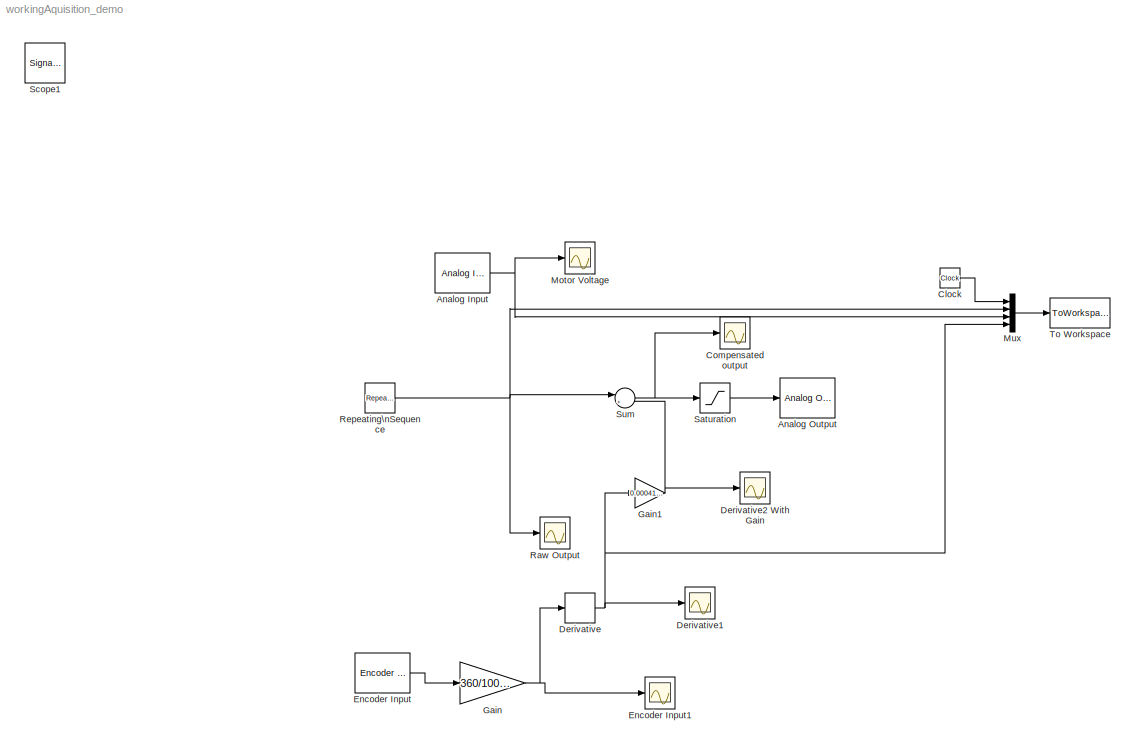
MODEL workingAquisition_demo
KIND model
BLOCK [Reference] Analog Input  REF=rtwinlib/Analog Input
  AttributesFormatString = Sensoray\\nModel 626 [auto]
  Channels = 1
  DataType = 1
  DrvAddress = 4294967295
  DrvName = Sensoray/Model_626
  DrvOptions = zeros(1,0)
  Ports = [0, 1]
  RangeMode = 1
  SampleTime = 0.01
  SourceBlock = rtwinlib/Analog Input
  SourceType = RTWin Analog Input
  VoltRange = 1
BLOCK [Reference] Analog Output  REF=rtwinlib/Analog Output
  AttributesFormatString = Sensoray\\nModel 626 [auto]
  Channels = 1
  DrvAddress = 4294967295
  DrvName = Sensoray/Model_626
  DrvOptions = zeros(1,0)
  FinalValue = 0
  InitialValue = 0
  Ports = [1]
  RangeMode = 1
  SampleTime = 0.01
  SourceBlock = rtwinlib/Analog Output
  SourceType = RTWin Analog Output
  VoltRange = 1
BLOCK [Clock] Clock
  Decimation = 10
BLOCK [Scope] Compensated output
  DataFormat = Array
  Floating = off
  NumInputPorts = 1
  Ports = [1]
  SampleTime = 0
  SaveName = position5
  SaveToWorkspace = on
  YMax = 5.5
  YMin = -1
BLOCK [Derivative] Derivative
BLOCK [Scope] Derivative1
  DataFormat = Array
  Floating = off
  NumInputPorts = 1
  Ports = [1]
  SampleTime = 0
  SaveName = position3
  SaveToWorkspace = on
  YMax = 3000
  YMin = -1500
BLOCK [Scope] Derivative2 With Gain
  DataFormat = Array
  Floating = off
  NumInputPorts = 1
  Ports = [1]
  SampleTime = 0
  SaveName = position4
  SaveToWorkspace = on
  YMax = 1.05
  YMin = 0
BLOCK [Reference] Encoder Input  REF=rtwinlib/Encoder Input
  AttributesFormatString = Sensoray\\nModel 626 [auto]
  Channels = [4]
  DataType = 1
  DrvAddress = 4294967295
  DrvName = Sensoray/Model_626
  DrvOptions = zeros(1,0)
  IndexPulse = 2
  InputFilter = inf
  Ports = [0, 1]
  QuadMode = 3
  SampleTime = 0.01
  SourceBlock = rtwinlib/Encoder Input
  SourceType = RTWin Encoder Input
BLOCK [Scope] Encoder Input1
  DataFormat = Array
  Floating = off
  NumInputPorts = 1
  Ports = [1]
  SampleTime = 0
  SaveName = position
  SaveToWorkspace = on
  YMax = -210000
  YMin = -227000
BLOCK [Gain] Gain
  Gain = 360/10000
  OutDataType = sfix(16)
  OutDataTypeMode = Inherit via internal rule
  OutScaling = 2^0
  ParameterDataType = sfix(16)
  ParameterDataTypeMode = Inherit via internal rule
  ParameterScaling = 2^0
  SaturateOnIntegerOverflow = off
BLOCK [Gain] Gain1
  Gain = 0.000416666667
  OutDataType = sfix(16)
  OutDataTypeMode = Inherit via internal rule
  OutScaling = 2^0
  ParameterDataType = sfix(16)
  ParameterDataTypeMode = Inherit via internal rule
  ParameterScaling = 2^0
  SaturateOnIntegerOverflow = off
BLOCK [Scope] Motor Voltage
  DataFormat = Array
  Floating = off
  NumInputPorts = 1
  Ports = [1]
  SampleTime = 0
  SaveName = position1
  SaveToWorkspace = on
  YMax = 7
  YMin = -7
BLOCK [Mux] Mux
  DisplayOption = bar
  Ports = [4, 1]
BLOCK [Scope] Raw Output
  DataFormat = Array
  Floating = off
  NumInputPorts = 1
  Ports = [1]
  SampleTime = 0
  SaveName = position2
  SaveToWorkspace = on
  YMax = 3
  YMin = 1.3
BLOCK [Reference] Repeating\nSequence  REF=simulink/Sources/Repeating\nSequence
  FunctionWithSeparateData = off
  Ports = [0, 1]
  RTWMemSecDataConstants = Inherit from model
  RTWMemSecDataInternal = Inherit from model
  RTWMemSecDataParameters = Inherit from model
  RTWMemSecFuncExecute = Inherit from model
  RTWMemSecFuncInitTerm = Inherit from model
  ShowPortLabels = FromPortIcon
  SourceBlock = simulink/Sources/Repeating\nSequence
  SourceType = Repeating table
  SystemSampleTime = -1
  rep_seq_t = [0 3 6 9]
  rep_seq_y = [1.37 3 3 1.37]
BLOCK [Saturate] Saturation
  LowerLimit = 0
  OutDataType = sfix(16)
  OutScaling = 2^0
  UpperLimit = 3
BLOCK [SignalViewerScope] Scope1
  DataFormat = Array
  IOType = viewer
  MaxDataPoints = 7500
  NumInputPorts = 1
  Ports = []
  RefreshTime = 0.035000
  ShowDataMarkers = off
  ShowLegends = off
BLOCK [Sum] Sum
  CollapseMode = All dimensions
  IconShape = round
  InputSameDT = off
  Inputs = |+-
  OutDataType = sfix(16)
  OutDataTypeMode = Inherit via internal rule
  OutScaling = 2^0
  Ports = [2, 1]
  SaturateOnIntegerOverflow = off
BLOCK [ToWorkspace] To Workspace
  MaxDataPoints = inf
  SampleTime = 0.01
  SaveFormat = Array
  VariableName = simout
NET Analog Input:1 -> Motor Voltage:1, Mux:3
LINE Clock:1 -> Mux:1
NET Derivative:1 -> Derivative1:1, Gain1:1, Mux:4
LINE Encoder Input:1 -> Gain:1
NET Gain1:1 -> Derivative2 With Gain:1, Sum:2
NET Gain:1 -> Derivative:1, Encoder Input1:1
LINE Mux:1 -> To Workspace:1
NET Repeating\nSequence:1 -> Mux:2, Raw Output:1, Sum:1
LINE Saturation:1 -> Analog Output:1
NET Sum:1 -> Compensated output:1, Saturation:1
note: NET lines group one-source signal fan-out (src -> all destinations, sorted); 1:1 wires keep LINE
